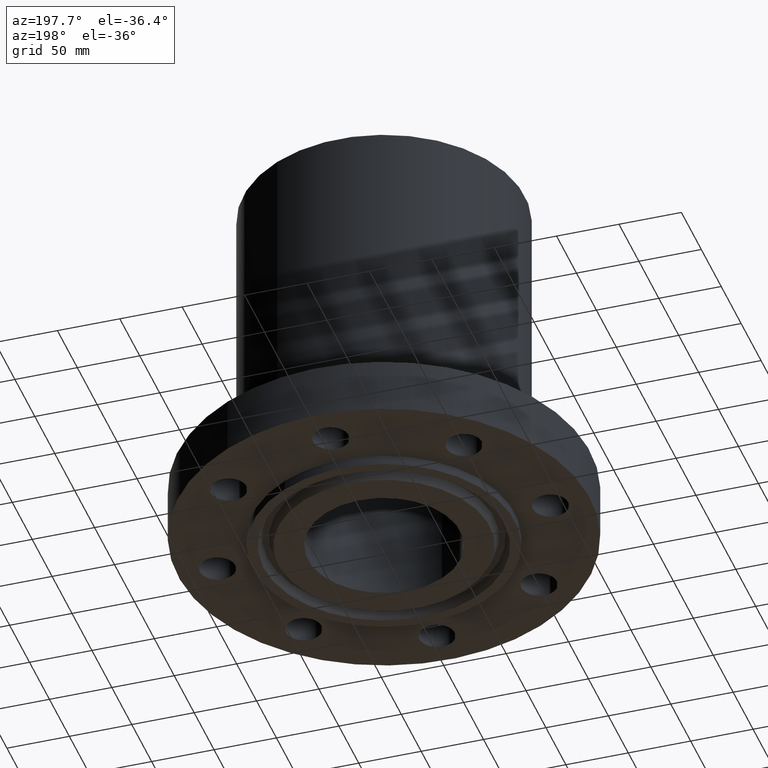
[diagram: clean part render]
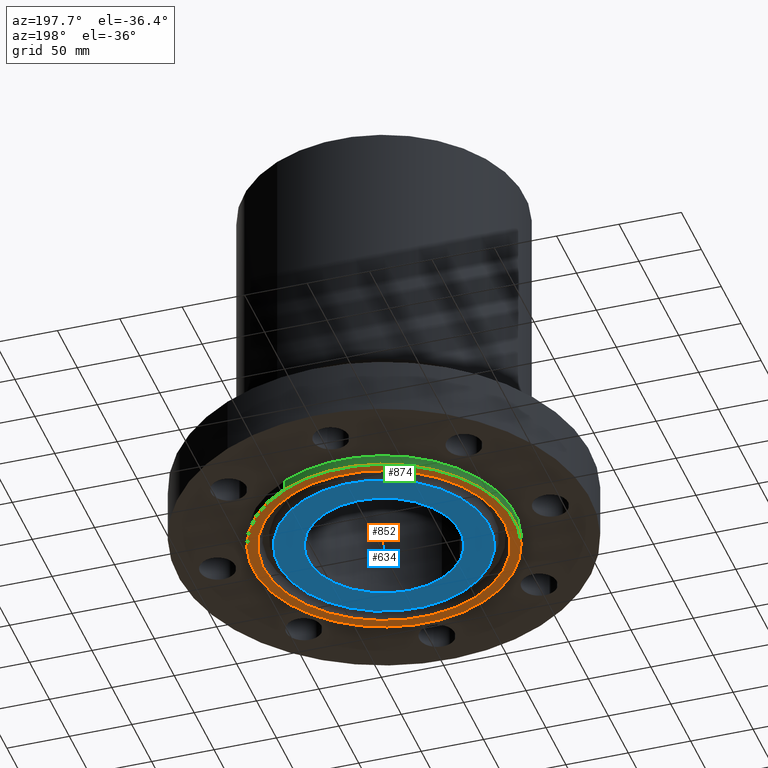
[diagram: same view with three faces highlighted in distinct colors, each labeled with its STEP entity id]
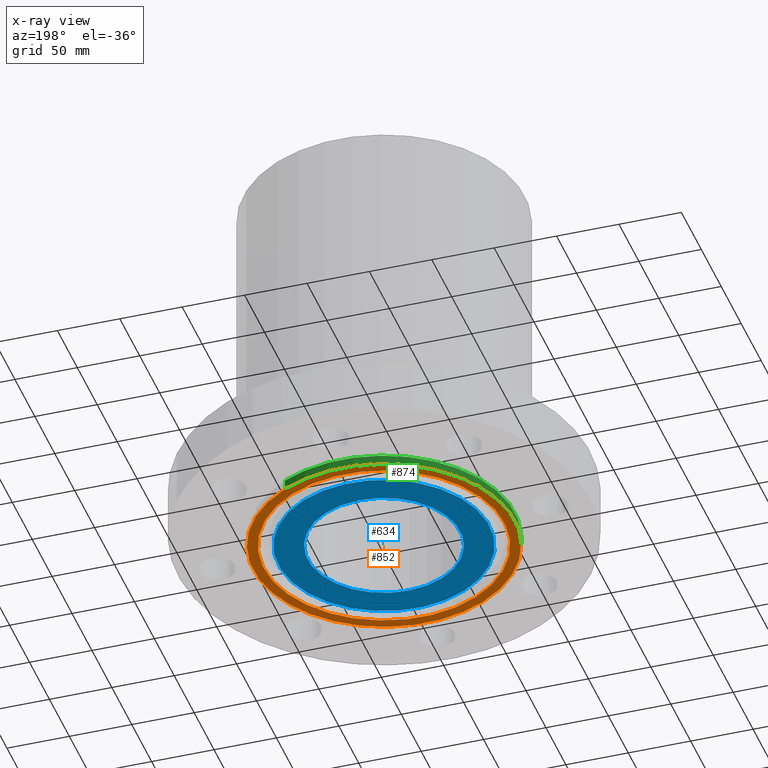
[diagram: x-ray of the same camera — body ghosted, the three highlighted faces saturated]
A machine part, auxiliary view with three faces highlighted in distinct colors.
The next image is the same camera in x-ray (body ghosted, the three faces saturated) — at least one of them is partly hidden behind the body in this view.
Their STEP definitions:

[orange] entity #852 — the highlighted planar face has unit normal (0, 0, -1).
#610=AXIS2_PLACEMENT_3D('Plane Axis2P3D',#607,#608,#609) ;
#801=AXIS2_PLACEMENT_3D('Circle Axis2P3D',#799,#800,$) ;
#820=AXIS2_PLACEMENT_3D('Circle Axis2P3D',#818,#819,$) ;
#832=AXIS2_PLACEMENT_3D('Circle Axis2P3D',#830,#831,$) ;
#841=AXIS2_PLACEMENT_3D('Circle Axis2P3D',#839,#840,$) ;
#607=CARTESIAN_POINT('Axis2P3D Location',(0.,3.32800000001,-0.313000000001)) ;
#796=CARTESIAN_POINT('Vertex',(-1.82037877009,-3.33218098751,-0.313000000001)) ;
#799=CARTESIAN_POINT('Axis2P3D Location',(0.,0.,-0.313000000001)) ;
#803=CARTESIAN_POINT('Vertex',(1.82037877009,3.33218098751,-0.313000000001)) ;
#818=CARTESIAN_POINT('Axis2P3D Location',(0.,0.,-0.313000000001)) ;
#830=CARTESIAN_POINT('Axis2P3D Location',(0.,0.,-0.313000000001)) ;
#834=CARTESIAN_POINT('Vertex',(-1.97763034675,-3.62002806781,-0.313000000001)) ;
#836=CARTESIAN_POINT('Vertex',(1.97763034675,3.62002806781,-0.313000000001)) ;
#839=CARTESIAN_POINT('Axis2P3D Location',(0.,0.,-0.313000000001)) ;
#608=DIRECTION('Axis2P3D Direction',(0.,0.,-0.0393700787402)) ;
#609=DIRECTION('Axis2P3D XDirection',(0.0393700787402,0.,0.)) ;
#800=DIRECTION('Axis2P3D Direction',(0.,0.,-0.0393700787402)) ;
#819=DIRECTION('Axis2P3D Direction',(0.,0.,-0.0393700787402)) ;
#831=DIRECTION('Axis2P3D Direction',(0.,0.,-0.0393700787402)) ;
#840=DIRECTION('Axis2P3D Direction',(0.,0.,-0.0393700787402)) ;
#845=ORIENTED_EDGE('',*,*,#838,.T.) ;
#846=ORIENTED_EDGE('',*,*,#843,.T.) ;
#849=ORIENTED_EDGE('',*,*,#822,.F.) ;
#850=ORIENTED_EDGE('',*,*,#805,.F.) ;
#851=FACE_BOUND('',#848,.T.) ;
#852=ADVANCED_FACE('PartBody',(#847,#851),#611,.T.) ;
#802=CIRCLE('generated circle',#801,3.79700000002) ;
#821=CIRCLE('generated circle',#820,3.79700000002) ;
#833=CIRCLE('generated circle',#832,4.12500000002) ;
#842=CIRCLE('generated circle',#841,4.12500000002) ;
#805=EDGE_CURVE('',#797,#804,#802,.T.) ;
#822=EDGE_CURVE('',#804,#797,#821,.T.) ;
#838=EDGE_CURVE('',#835,#837,#833,.T.) ;
#843=EDGE_CURVE('',#837,#835,#842,.T.) ;
#844=EDGE_LOOP('',(#845,#846)) ;
#848=EDGE_LOOP('',(#849,#850)) ;
#847=FACE_OUTER_BOUND('',#844,.T.) ;
#611=PLANE('',#610) ;
#797=VERTEX_POINT('',#796) ;
#804=VERTEX_POINT('',#803) ;
#835=VERTEX_POINT('',#834) ;
#837=VERTEX_POINT('',#836) ;

[blue] entity #634 — the highlighted planar face has unit normal (0, 0, -1).
#578=AXIS2_PLACEMENT_3D('Circle Axis2P3D',#576,#577,$) ;
#597=AXIS2_PLACEMENT_3D('Circle Axis2P3D',#595,#596,$) ;
#610=AXIS2_PLACEMENT_3D('Plane Axis2P3D',#607,#608,#609) ;
#614=AXIS2_PLACEMENT_3D('Circle Axis2P3D',#612,#613,$) ;
#623=AXIS2_PLACEMENT_3D('Circle Axis2P3D',#621,#622,$) ;
#573=CARTESIAN_POINT('Vertex',(1.15301842035,2.11058606135,-0.313000000001)) ;
#576=CARTESIAN_POINT('Axis2P3D Location',(0.,0.,-0.313000000001)) ;
#580=CARTESIAN_POINT('Vertex',(-1.15301842035,-2.11058606135,-0.313000000001)) ;
#595=CARTESIAN_POINT('Axis2P3D Location',(0.,0.,-0.313000000001)) ;
#607=CARTESIAN_POINT('Axis2P3D Location',(0.,3.32800000001,-0.313000000001)) ;
#612=CARTESIAN_POINT('Axis2P3D Location',(0.,0.,-0.313000000001)) ;
#616=CARTESIAN_POINT('Vertex',(-1.59552819248,-2.92059476598,-0.313000000001)) ;
#618=CARTESIAN_POINT('Vertex',(1.59552819248,2.92059476598,-0.313000000001)) ;
#621=CARTESIAN_POINT('Axis2P3D Location',(0.,0.,-0.313000000001)) ;
#577=DIRECTION('Axis2P3D Direction',(0.,0.,-0.0393700787402)) ;
#596=DIRECTION('Axis2P3D Direction',(0.,0.,-0.0393700787402)) ;
#608=DIRECTION('Axis2P3D Direction',(0.,0.,-0.0393700787402)) ;
#609=DIRECTION('Axis2P3D XDirection',(0.0393700787402,0.,0.)) ;
#613=DIRECTION('Axis2P3D Direction',(0.,0.,-0.0393700787402)) ;
#622=DIRECTION('Axis2P3D Direction',(0.,0.,-0.0393700787402)) ;
#627=ORIENTED_EDGE('',*,*,#620,.T.) ;
#628=ORIENTED_EDGE('',*,*,#625,.T.) ;
#631=ORIENTED_EDGE('',*,*,#582,.F.) ;
#632=ORIENTED_EDGE('',*,*,#599,.F.) ;
#633=FACE_BOUND('',#630,.T.) ;
#634=ADVANCED_FACE('PartBody',(#629,#633),#611,.T.) ;
#579=CIRCLE('generated circle',#578,2.40500000001) ;
#598=CIRCLE('generated circle',#597,2.40500000001) ;
#615=CIRCLE('generated circle',#614,3.32800000001) ;
#624=CIRCLE('generated circle',#623,3.32800000001) ;
#582=EDGE_CURVE('',#574,#581,#579,.T.) ;
#599=EDGE_CURVE('',#581,#574,#598,.T.) ;
#620=EDGE_CURVE('',#617,#619,#615,.T.) ;
#625=EDGE_CURVE('',#619,#617,#624,.T.) ;
#626=EDGE_LOOP('',(#627,#628)) ;
#630=EDGE_LOOP('',(#631,#632)) ;
#629=FACE_OUTER_BOUND('',#626,.T.) ;
#611=PLANE('',#610) ;
#574=VERTEX_POINT('',#573) ;
#581=VERTEX_POINT('',#580) ;
#617=VERTEX_POINT('',#616) ;
#619=VERTEX_POINT('',#618) ;

[green] entity #874 — the highlighted cylindrical surface (partial cylindrical patch) has radius 104.775 mm, axis along (0, 0, -1).
#118=AXIS2_PLACEMENT_3D('Circle Axis2P3D',#116,#117,$) ;
#832=AXIS2_PLACEMENT_3D('Circle Axis2P3D',#830,#831,$) ;
#856=AXIS2_PLACEMENT_3D('Cylinder Axis2P3D',#853,#854,#855) ;
#111=CARTESIAN_POINT('Vertex',(1.97763034675,3.62002806781,0.)) ;
#113=CARTESIAN_POINT('Vertex',(-1.97763034675,-3.62002806781,0.)) ;
#116=CARTESIAN_POINT('Axis2P3D Location',(0.,0.,0.)) ;
#830=CARTESIAN_POINT('Axis2P3D Location',(0.,0.,-0.313000000001)) ;
#834=CARTESIAN_POINT('Vertex',(-1.97763034675,-3.62002806781,-0.313000000001)) ;
#836=CARTESIAN_POINT('Vertex',(1.97763034675,3.62002806781,-0.313000000001)) ;
#853=CARTESIAN_POINT('Axis2P3D Location',(0.,0.,5.71850000002)) ;
#858=CARTESIAN_POINT('Line Origine',(-1.97763034675,-3.62002806781,-0.156500000001)) ;
#863=CARTESIAN_POINT('Line Origine',(1.97763034675,3.62002806781,-0.156500000001)) ;
#117=DIRECTION('Axis2P3D Direction',(0.,0.,-0.0393700787402)) ;
#831=DIRECTION('Axis2P3D Direction',(0.,0.,-0.0393700787402)) ;
#854=DIRECTION('Axis2P3D Direction',(0.,0.,-0.0393700787402)) ;
#855=DIRECTION('Axis2P3D XDirection',(0.0188750212049,0.0345504945626,0.)) ;
#859=DIRECTION('Vector Direction',(0.,0.,-0.0393700787402)) ;
#864=DIRECTION('Vector Direction',(0.,0.,-0.0393700787402)) ;
#860=VECTOR('Line Direction',#859,0.0393700787402) ;
#865=VECTOR('Line Direction',#864,0.0393700787402) ;
#869=ORIENTED_EDGE('',*,*,#838,.F.) ;
#870=ORIENTED_EDGE('',*,*,#862,.T.) ;
#871=ORIENTED_EDGE('',*,*,#120,.T.) ;
#872=ORIENTED_EDGE('',*,*,#867,.F.) ;
#874=ADVANCED_FACE('PartBody',(#873),#857,.T.) ;
#119=CIRCLE('generated circle',#118,4.12500000002) ;
#833=CIRCLE('generated circle',#832,4.12500000002) ;
#857=CYLINDRICAL_SURFACE('generated cylinder',#856,4.12500000002) ;
#120=EDGE_CURVE('',#114,#112,#119,.T.) ;
#838=EDGE_CURVE('',#835,#837,#833,.T.) ;
#862=EDGE_CURVE('',#835,#114,#861,.F.) ;
#867=EDGE_CURVE('',#837,#112,#866,.F.) ;
#868=EDGE_LOOP('',(#869,#870,#871,#872)) ;
#873=FACE_OUTER_BOUND('',#868,.T.) ;
#861=LINE('Line',#858,#860) ;
#866=LINE('Line',#863,#865) ;
#112=VERTEX_POINT('',#111) ;
#114=VERTEX_POINT('',#113) ;
#835=VERTEX_POINT('',#834) ;
#837=VERTEX_POINT('',#836) ;